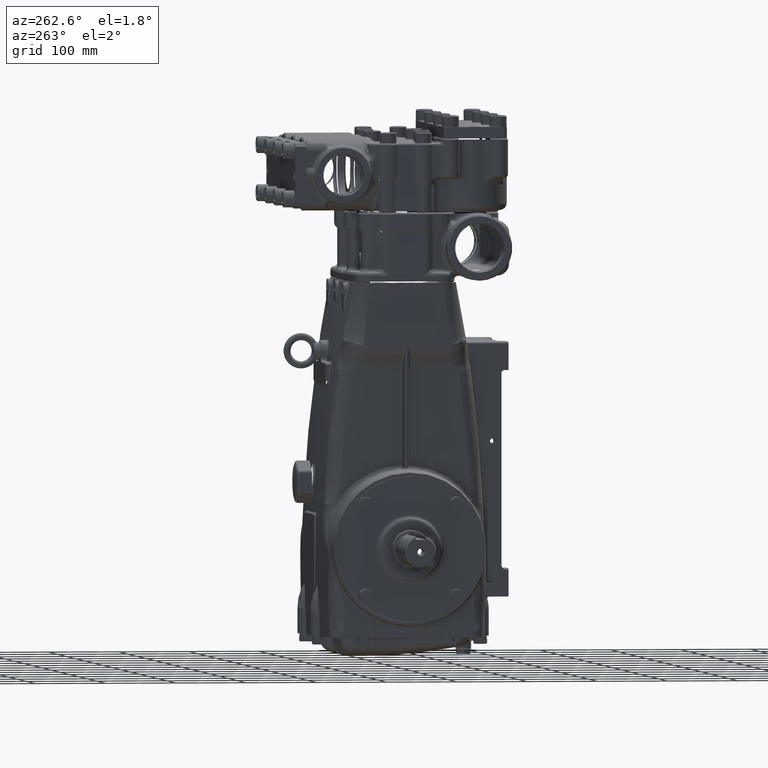
[diagram: clean part render]
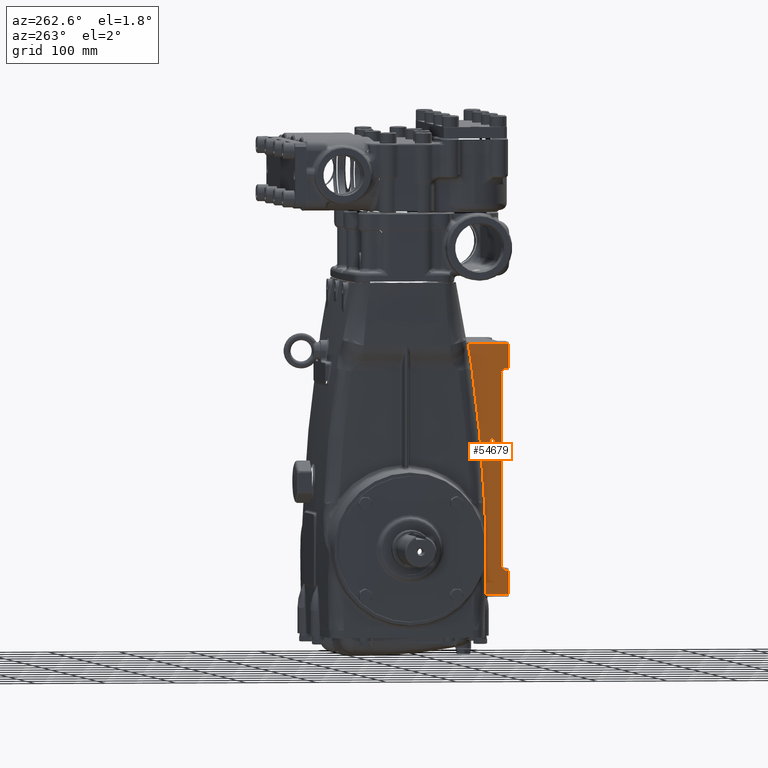
[diagram: same view with one face highlighted and labeled with its STEP entity id]
A machine part, auxiliary view. The second image highlights one B-rep face of the part: STEP entity #54679.
In plain terms, the highlighted planar face has unit normal (1, 0, -0).
Its self-contained STEP definition (entity closure, byte-faithful):
#1653 = CARTESIAN_POINT ( 'NONE',  ( -4.330708661417319583, -5.612481343199264394, 9.885936161313281900 ) ) ;
#2298 = CARTESIAN_POINT ( 'NONE',  ( -4.330708661417317806, -3.720373892604141641, 10.85050533803187101 ) ) ;
#3829 = EDGE_CURVE ( 'NONE', #21691, #114843, #54933, .T. ) ;
#4039 = VECTOR ( 'NONE', #122500, 39.37007874015748143 ) ;
#4455 = ORIENTED_EDGE ( 'NONE', *, *, #125132, .T. ) ;
#5116 = VERTEX_POINT ( 'NONE', #15306 ) ;
#5696 = CARTESIAN_POINT ( 'NONE',  ( -4.330708661417319583, -4.020560686727725930, 8.739019611534521559 ) ) ;
#6238 = CARTESIAN_POINT ( 'NONE',  ( -4.330708661417317806, -3.679653842082431403, 11.11588071487851259 ) ) ;
#6307 = CARTESIAN_POINT ( 'NONE',  ( -4.330708661417322247, -4.561810661030907710, 2.489665095192299393 ) ) ;
#7383 = EDGE_CURVE ( 'NONE', #43214, #112829, #108778, .T. ) ;
#8879 = CARTESIAN_POINT ( 'NONE',  ( -4.330708661417324024, -5.523857557543355057, -1.082472261973262961 ) ) ;
#10618 = CARTESIAN_POINT ( 'NONE',  ( -4.330708661417318694, -3.849796325247808237, 9.982332000776853675 ) ) ;
#11981 = B_SPLINE_CURVE_WITH_KNOTS ( 'NONE', 3,
 ( #13643, #98943, #32604, #90111, #50922, #42057, #117910, #31982, #68643, #1653, #22504, #61053 ),
 .UNSPECIFIED., .F., .F.,
 ( 4, 2, 2, 2, 2, 4 ),
 ( 2.281535328170445040E-15, 0.001161146787051145447, 0.001741720180575610224, 0.002322293574100075218, 0.004644587148197994175, 0.009289174296393882396 ),
 .UNSPECIFIED. ) ;
#13040 = CARTESIAN_POINT ( 'NONE',  ( -4.330708661417316030, -3.797914805191444643, 10.32958397861387922 ) ) ;
#13622 = CARTESIAN_POINT ( 'NONE',  ( -4.330708661417324024, -5.905511811023622215, -1.299212598425191434 ) ) ;
#13643 = CARTESIAN_POINT ( 'NONE',  ( -4.330708661417318694, -5.511811023621509875, 9.668653602870250552 ) ) ;
#13791 = EDGE_CURVE ( 'NONE', #92697, #43214, #73024, .T. ) ;
#13945 = CARTESIAN_POINT ( 'NONE',  ( -4.330708661417322247, -4.574199430740796934, 2.235728777375860066 ) ) ;
#14025 = B_SPLINE_CURVE_WITH_KNOTS ( 'NONE', 3,
 ( #100508, #81555, #13945, #120706, #91013, #120097 ),
 .UNSPECIFIED., .F., .F.,
 ( 4, 2, 4 ),
 ( 0.000000000000000000, 0.009686476643616477242, 0.01937295328723295448 ),
 .UNSPECIFIED. ) ;
#14393 = EDGE_CURVE ( 'NONE', #83195, #96945, #21818, .T. ) ;
#15202 = CARTESIAN_POINT ( 'NONE',  ( -4.330708661417318694, -3.849796325247808237, 9.982332000776853675 ) ) ;
#15306 = CARTESIAN_POINT ( 'NONE',  ( -4.330708661417324912, -5.905511811023622215, -2.637795275590546940 ) ) ;
#15887 = CARTESIAN_POINT ( 'NONE',  ( -4.330708661417324024, -5.511811023621509875, -1.007236280035602061 ) ) ;
#16501 = CARTESIAN_POINT ( 'NONE',  ( -4.330708661417323135, -5.519561899254895820, -1.067744340551026516 ) ) ;
#18795 = CIRCLE ( 'NONE', #121685, 0.1328740157480310657 ) ;
#20520 = CARTESIAN_POINT ( 'NONE',  ( -4.330708661417318694, -5.905511811023622215, 9.960629921259842590 ) ) ;
#20540 = DIRECTION ( 'NONE',  ( -0.000000000000000000, 1.000000000000000000, -0.000000000000000000 ) ) ;
#20835 = DIRECTION ( 'NONE',  ( 4.625929269271485914E-16, -0.000000000000000000, 1.000000000000000000 ) ) ;
#21691 = VERTEX_POINT ( 'NONE', #91900 ) ;
#21818 = B_SPLINE_CURVE_WITH_KNOTS ( 'NONE', 3,
 ( #109398, #29538, #124350, #123085, #85783, #38378 ),
 .UNSPECIFIED., .F., .F.,
 ( 4, 2, 4 ),
 ( 0.000000000000000000, 0.05545994499391303928, 0.1109198899878260786 ),
 .UNSPECIFIED. ) ;
#22504 = CARTESIAN_POINT ( 'NONE',  ( -4.330708661417317806, -5.660474196190496521, 9.923304198069603288 ) ) ;
#22532 = CARTESIAN_POINT ( 'NONE',  ( -4.330708661417317806, -3.707756986922133624, 10.93737147724965375 ) ) ;
#22858 = DIRECTION ( 'NONE',  ( 0.000000000000000000, -1.000000000000000000, 0.000000000000000000 ) ) ;
#23079 = CARTESIAN_POINT ( 'NONE',  ( -4.330708661417317806, -5.905511811023622215, 11.29921259842519810 ) ) ;
#23352 = LINE ( 'NONE', #82685, #4039 ) ;
#25987 = CARTESIAN_POINT ( 'NONE',  ( -4.330708661417324024, -5.708661417322118403, -1.299212598425195875 ) ) ;
#26023 = DIRECTION ( 'NONE',  ( 1.000000000000000000, 0.000000000000000000, -4.625929269271485914E-16 ) ) ;
#27212 = ORIENTED_EDGE ( 'NONE', *, *, #77664, .T. ) ;
#28048 = VERTEX_POINT ( 'NONE', #62585 ) ;
#28940 = B_SPLINE_CURVE_WITH_KNOTS ( 'NONE', 3,
 ( #25987, #124549, #112553, #122037, #64513, #103044, #74008, #45548, #113813, #37964, #8879, #16501, #76496, #55045, #115036, #15887 ),
 .UNSPECIFIED., .F., .F.,
 ( 4, 2, 2, 2, 2, 2, 2, 4 ),
 ( -1.414213562386258345E-05, 0.001141492621043463211, 0.002297127377710789231, 0.004608396891045378821, 0.006919666404379967543, 0.007497483782713633589, 0.008075301161047298767, 0.009230935917714627389 ),
 .UNSPECIFIED. ) ;
#29250 = VECTOR ( 'NONE', #22858, 39.37007874015748143 ) ;
#29538 = CARTESIAN_POINT ( 'NONE',  ( -4.330708661417322247, -4.625092016339777068, 1.000649448202308278 ) ) ;
#31813 = VERTEX_POINT ( 'NONE', #44662 ) ;
#31982 = CARTESIAN_POINT ( 'NONE',  ( -4.330708661417319583, -5.540231194186154617, 9.786952323660477404 ) ) ;
#32604 = CARTESIAN_POINT ( 'NONE',  ( -4.330708661417316918, -5.513360750186181214, 9.699301047257321784 ) ) ;
#33064 = ORIENTED_EDGE ( 'NONE', *, *, #72685, .T. ) ;
#35686 = CARTESIAN_POINT ( 'NONE',  ( -4.330708661417317806, -5.905511811023622215, 11.41732283464567033 ) ) ;
#37209 = CARTESIAN_POINT ( 'NONE',  ( -4.330708661417317806, -3.694105952064032472, 11.02408274776168184 ) ) ;
#37616 = LINE ( 'NONE', #99935, #29250 ) ;
#37964 = CARTESIAN_POINT ( 'NONE',  ( -4.330708661417324024, -5.526354792053539633, -1.089803178924994453 ) ) ;
#38378 = CARTESIAN_POINT ( 'NONE',  ( -4.330708661417324912, -4.641171733027025681, -2.637795275590551380 ) ) ;
#38526 = LINE ( 'NONE', #116246, #65607 ) ;
#38981 = CARTESIAN_POINT ( 'NONE',  ( -4.330708661417318694, -3.849796325247808237, 9.982332000776853675 ) ) ;
#39664 = CARTESIAN_POINT ( 'NONE',  ( -4.330708661417324024, -5.708661417322118403, -1.299212598425195875 ) ) ;
#39925 = DIRECTION ( 'NONE',  ( 1.000000000000000000, 0.000000000000000000, -4.625929269271485914E-16 ) ) ;
#42057 = CARTESIAN_POINT ( 'NONE',  ( -4.330708661417318694, -5.523857386598908015, 9.743889051750500130 ) ) ;
#42273 = EDGE_LOOP ( 'NONE', ( #74790, #49333, #61525, #68019, #33064, #122810, #62233, #27212, #113010, #98373, #78457, #62507, #86703, #61531 ) ) ;
#43214 = VERTEX_POINT ( 'NONE', #10618 ) ;
#43373 = EDGE_CURVE ( 'NONE', #57377, #51120, #45255, .T. ) ;
#44662 = CARTESIAN_POINT ( 'NONE',  ( -4.330708661417318694, -5.511811023621509875, 9.668653602870250552 ) ) ;
#45255 = LINE ( 'NONE', #45891, #123445 ) ;
#45548 = CARTESIAN_POINT ( 'NONE',  ( -4.330708661417323135, -5.555866031770023028, -1.151722018210426413 ) ) ;
#45891 = CARTESIAN_POINT ( 'NONE',  ( -4.330708661417324024, 19685.03937007874265, -1.299212598425195875 ) ) ;
#46054 = CARTESIAN_POINT ( 'NONE',  ( -4.330708661417318694, 19685.03937007874265, 9.960629921259842590 ) ) ;
#46906 = CARTESIAN_POINT ( 'NONE',  ( -4.330708661417317806, -3.650293332670990765, 11.29921259842519810 ) ) ;
#48177 = VERTEX_POINT ( 'NONE', #46906 ) ;
#49084 = DIRECTION ( 'NONE',  ( 0.000000000000000000, 0.000000000000000000, -1.000000000000000000 ) ) ;
#49333 = ORIENTED_EDGE ( 'NONE', *, *, #70644, .T. ) ;
#49598 = EDGE_CURVE ( 'NONE', #96945, #5116, #37616, .T. ) ;
#49706 = CARTESIAN_POINT ( 'NONE',  ( -4.330708661417316030, -3.745837844733637123, 10.67680752492550589 ) ) ;
#50351 = VECTOR ( 'NONE', #103254, 39.37007874015748143 ) ;
#50922 = CARTESIAN_POINT ( 'NONE',  ( -4.330708661417318694, -5.519561789034339583, 9.729161232448573671 ) ) ;
#51120 = VERTEX_POINT ( 'NONE', #39664 ) ;
#51579 = CARTESIAN_POINT ( 'NONE',  ( -4.330708661417317806, -3.824865578151133150, 10.15610846772178633 ) ) ;
#54679 = ADVANCED_FACE ( 'NONE', ( #115757, #78472 ), #107531, .F. ) ;
#54761 = DIRECTION ( 'NONE',  ( 0.000000000000000000, 1.000000000000000000, 0.000000000000000000 ) ) ;
#54933 = LINE ( 'NONE', #46054, #70905 ) ;
#55045 = CARTESIAN_POINT ( 'NONE',  ( -4.330708661417324024, -5.513360772546194610, -1.037883945434335820 ) ) ;
#57377 = VERTEX_POINT ( 'NONE', #13622 ) ;
#59682 = CARTESIAN_POINT ( 'NONE',  ( -4.330708661417322247, -4.561810661030907710, 2.489665095192299393 ) ) ;
#61053 = CARTESIAN_POINT ( 'NONE',  ( -4.330708661417318694, -5.708661417322118403, 9.960629921259842590 ) ) ;
#61075 = CARTESIAN_POINT ( 'NONE',  ( -4.330708661417315142, -3.758670633339183720, 10.58997371581670244 ) ) ;
#61384 = CARTESIAN_POINT ( 'NONE',  ( -4.330708661417322247, -4.413781653075156797, 4.995237787766293458 ) ) ;
#61525 = ORIENTED_EDGE ( 'NONE', *, *, #13791, .T. ) ;
#61531 = ORIENTED_EDGE ( 'NONE', *, *, #117567, .T. ) ;
#62004 = CARTESIAN_POINT ( 'NONE',  ( -4.330708661417319583, -4.235753434905722870, 6.869152594603407103 ) ) ;
#62233 = ORIENTED_EDGE ( 'NONE', *, *, #49598, .T. ) ;
#62507 = ORIENTED_EDGE ( 'NONE', *, *, #75652, .T. ) ;
#62585 = CARTESIAN_POINT ( 'NONE',  ( -4.330708661417320471, -5.000000000000000000, 6.038385826771652809 ) ) ;
#62974 = AXIS2_PLACEMENT_3D ( 'NONE', #65824, #26023, #65183 ) ;
#63590 = EDGE_CURVE ( 'NONE', #70527, #31813, #23352, .T. ) ;
#63881 = AXIS2_PLACEMENT_3D ( 'NONE', #106297, #39925, #117001 ) ;
#64513 = CARTESIAN_POINT ( 'NONE',  ( -4.330708661417324024, -5.649158604997146504, -1.251872600408570513 ) ) ;
#64929 = DIRECTION ( 'NONE',  ( 1.000000000000000000, 0.000000000000000000, -4.625929269271485914E-16 ) ) ;
#65009 = CARTESIAN_POINT ( 'NONE',  ( -4.330708661417317806, -3.650293332670990765, 11.29921259842519810 ) ) ;
#65183 = DIRECTION ( 'NONE',  ( 0.000000000000000000, 0.000000000000000000, -1.000000000000000000 ) ) ;
#65607 = VECTOR ( 'NONE', #20835, 39.37007874015748143 ) ;
#65824 = CARTESIAN_POINT ( 'NONE',  ( -4.330708661417320471, -5.000000000000000000, 5.905511811023622215 ) ) ;
#68019 = ORIENTED_EDGE ( 'NONE', *, *, #7383, .T. ) ;
#68643 = CARTESIAN_POINT ( 'NONE',  ( -4.330708661417318694, -5.555865420700115465, 9.813138377378511024 ) ) ;
#69930 = CARTESIAN_POINT ( 'NONE',  ( -4.330708661417317806, -3.694105952064032472, 11.02408274776168184 ) ) ;
#70527 = VERTEX_POINT ( 'NONE', #108402 ) ;
#70644 = EDGE_CURVE ( 'NONE', #48177, #92697, #109402, .T. ) ;
#70841 = CARTESIAN_POINT ( 'NONE',  ( -4.330708661417319583, -3.938904280000039559, 9.361209502195631416 ) ) ;
#70905 = VECTOR ( 'NONE', #84618, 39.37007874015748143 ) ;
#71520 = CARTESIAN_POINT ( 'NONE',  ( -4.330708661417322247, -4.597700456621135245, 1.727972093343288496 ) ) ;
#72685 = EDGE_CURVE ( 'NONE', #112829, #83195, #14025, .T. ) ;
#73024 = B_SPLINE_CURVE_WITH_KNOTS ( 'NONE', 3,
 ( #69930, #22532, #2298, #49706, #61075, #13040, #51579, #38981 ),
 .UNSPECIFIED., .F., .F.,
 ( 4, 2, 2, 4 ),
 ( 0.000000000000000000, 0.006688590237758891902, 0.01337718047551778380, 0.02675436095103556761 ),
 .UNSPECIFIED. ) ;
#73657 = LINE ( 'NONE', #112205, #91929 ) ;
#74008 = CARTESIAN_POINT ( 'NONE',  ( -4.330708661417325800, -5.593610404961347982, -1.200254064566543377 ) ) ;
#74790 = ORIENTED_EDGE ( 'NONE', *, *, #78104, .T. ) ;
#75652 = EDGE_CURVE ( 'NONE', #31813, #21691, #11981, .T. ) ;
#76496 = CARTESIAN_POINT ( 'NONE',  ( -4.330708661417324912, -5.517751417632301703, -1.060323281988302835 ) ) ;
#77664 = EDGE_CURVE ( 'NONE', #5116, #57377, #38526, .T. ) ;
#78104 = EDGE_CURVE ( 'NONE', #81738, #48177, #73657, .T. ) ;
#78457 = ORIENTED_EDGE ( 'NONE', *, *, #63590, .T. ) ;
#78472 = FACE_OUTER_BOUND ( 'NONE', #42273, .T. ) ;
#78621 = EDGE_LOOP ( 'NONE', ( #4455, #92756 ) ) ;
#79931 = VERTEX_POINT ( 'NONE', #119364 ) ;
#81555 = CARTESIAN_POINT ( 'NONE',  ( -4.330708661417322247, -4.567744563071908459, 2.362684232270944040 ) ) ;
#81738 = VERTEX_POINT ( 'NONE', #23079 ) ;
#82685 = CARTESIAN_POINT ( 'NONE',  ( -4.330708661417317806, -5.511811023621509875, 11.41732283464567033 ) ) ;
#83195 = VERTEX_POINT ( 'NONE', #71520 ) ;
#84231 = EDGE_CURVE ( 'NONE', #51120, #70527, #28940, .T. ) ;
#84276 = CARTESIAN_POINT ( 'NONE',  ( -4.330708661417324912, -4.641171733027025681, -2.637795275590551380 ) ) ;
#84618 = DIRECTION ( 'NONE',  ( 0.000000000000000000, -1.000000000000000000, 0.000000000000000000 ) ) ;
#85783 = CARTESIAN_POINT ( 'NONE',  ( -4.330708661417324912, -4.654075012934553612, -1.910071403598017747 ) ) ;
#86703 = ORIENTED_EDGE ( 'NONE', *, *, #3829, .T. ) ;
#90111 = CARTESIAN_POINT ( 'NONE',  ( -4.330708661417317806, -5.517751333018248161, 9.721740225750888698 ) ) ;
#91013 = CARTESIAN_POINT ( 'NONE',  ( -4.330708661417322247, -4.592923636427223677, 1.854832446781617517 ) ) ;
#91033 = CARTESIAN_POINT ( 'NONE',  ( -4.330708661417320471, -5.000000000000000000, 5.905511811023622215 ) ) ;
#91900 = CARTESIAN_POINT ( 'NONE',  ( -4.330708661417318694, -5.708661417322118403, 9.960629921259842590 ) ) ;
#91929 = VECTOR ( 'NONE', #20540, 39.37007874015748143 ) ;
#92697 = VERTEX_POINT ( 'NONE', #101611 ) ;
#92756 = ORIENTED_EDGE ( 'NONE', *, *, #122817, .T. ) ;
#95161 = CIRCLE ( 'NONE', #62974, 0.1328740157480310657 ) ;
#96945 = VERTEX_POINT ( 'NONE', #84276 ) ;
#98373 = ORIENTED_EDGE ( 'NONE', *, *, #84231, .T. ) ;
#98943 = CARTESIAN_POINT ( 'NONE',  ( -4.330708661417320471, -5.511811023622048111, 9.684108474770964037 ) ) ;
#99917 = CARTESIAN_POINT ( 'NONE',  ( -4.330708661417319583, -4.168985392030166715, 7.492982133599030981 ) ) ;
#99935 = CARTESIAN_POINT ( 'NONE',  ( -4.330708661417324912, 19685.03937007874265, -2.637795275590551380 ) ) ;
#100508 = CARTESIAN_POINT ( 'NONE',  ( -4.330708661417322247, -4.561810661030907710, 2.489665095192299393 ) ) ;
#100525 = CARTESIAN_POINT ( 'NONE',  ( -4.330708661417320471, -4.502726479363019507, 3.743283194850691942 ) ) ;
#101611 = CARTESIAN_POINT ( 'NONE',  ( -4.330708661417317806, -3.694105952064032472, 11.02408274776168184 ) ) ;
#103044 = CARTESIAN_POINT ( 'NONE',  ( -4.330708661417324912, -5.615046971796994413, -1.221747685589043453 ) ) ;
#103254 = DIRECTION ( 'NONE',  ( 4.625929269271485914E-16, -0.000000000000000000, 1.000000000000000000 ) ) ;
#103550 = CARTESIAN_POINT ( 'NONE',  ( -4.330708661417317806, -3.665054532830104073, 11.20755954673438559 ) ) ;
#106297 = CARTESIAN_POINT ( 'NONE',  ( -4.330708661417317806, 19685.03937007874265, 11.41732283464567033 ) ) ;
#107531 = PLANE ( 'NONE',  #63881 ) ;
#108402 = CARTESIAN_POINT ( 'NONE',  ( -4.330708661417324024, -5.511811023621509875, -1.007236280035602061 ) ) ;
#108778 = B_SPLINE_CURVE_WITH_KNOTS ( 'NONE', 3,
 ( #15202, #70841, #5696, #99917, #62004, #61384, #100525, #6307 ),
 .UNSPECIFIED., .F., .F.,
 ( 4, 2, 2, 4 ),
 ( 0.000000000000000000, 0.04781237632467381926, 0.09562475264934763852, 0.1912495052986952770 ),
 .UNSPECIFIED. ) ;
#109398 = CARTESIAN_POINT ( 'NONE',  ( -4.330708661417322247, -4.597700456621135245, 1.727972093343288496 ) ) ;
#109402 = B_SPLINE_CURVE_WITH_KNOTS ( 'NONE', 3,
 ( #65009, #103550, #6238, #37209 ),
 .UNSPECIFIED., .F., .F.,
 ( 4, 4 ),
 ( 0.000000000000000000, 0.007073949357450777693 ),
 .UNSPECIFIED. ) ;
#112205 = CARTESIAN_POINT ( 'NONE',  ( -4.330708661417317806, 19685.03937007874265, 11.29921259842519810 ) ) ;
#112553 = CARTESIAN_POINT ( 'NONE',  ( -4.330708661417322247, -5.684592308236755542, -1.280568199181267408 ) ) ;
#112829 = VERTEX_POINT ( 'NONE', #59682 ) ;
#113010 = ORIENTED_EDGE ( 'NONE', *, *, #43373, .T. ) ;
#113813 = CARTESIAN_POINT ( 'NONE',  ( -4.330708661417323135, -5.540231583407777549, -1.125535796228187779 ) ) ;
#114843 = VERTEX_POINT ( 'NONE', #20520 ) ;
#115036 = CARTESIAN_POINT ( 'NONE',  ( -4.330708661417325800, -5.511811023622048999, -1.022691264334465666 ) ) ;
#115757 = FACE_BOUND ( 'NONE', #78621, .T. ) ;
#116246 = CARTESIAN_POINT ( 'NONE',  ( -4.330708661417317806, -5.905511811023622215, 11.41732283464567033 ) ) ;
#117001 = DIRECTION ( 'NONE',  ( -4.625929269271485914E-16, 0.000000000000000000, -1.000000000000000000 ) ) ;
#117567 = EDGE_CURVE ( 'NONE', #114843, #81738, #122248, .T. ) ;
#117910 = CARTESIAN_POINT ( 'NONE',  ( -4.330708661417319583, -5.526354586598208662, 9.751219921001139213 ) ) ;
#119364 = CARTESIAN_POINT ( 'NONE',  ( -4.330708661417320471, -5.000000000000000000, 5.772637795275590733 ) ) ;
#120097 = CARTESIAN_POINT ( 'NONE',  ( -4.330708661417322247, -4.597700456621135245, 1.727972093343288496 ) ) ;
#120706 = CARTESIAN_POINT ( 'NONE',  ( -4.330708661417322247, -4.586823144275528286, 1.981804329023327815 ) ) ;
#121685 = AXIS2_PLACEMENT_3D ( 'NONE', #91033, #64929, #49084 ) ;
#122037 = CARTESIAN_POINT ( 'NONE',  ( -4.330708661417323135, -5.660857683331290247, -1.261559054153000847 ) ) ;
#122248 = LINE ( 'NONE', #35686, #50351 ) ;
#122500 = DIRECTION ( 'NONE',  ( 4.625929269271485914E-16, -0.000000000000000000, 1.000000000000000000 ) ) ;
#122810 = ORIENTED_EDGE ( 'NONE', *, *, #14393, .T. ) ;
#122817 = EDGE_CURVE ( 'NONE', #28048, #79931, #95161, .T. ) ;
#123085 = CARTESIAN_POINT ( 'NONE',  ( -4.330708661417324024, -4.656901445509914694, -1.182378075778278692 ) ) ;
#123445 = VECTOR ( 'NONE', #54761, 39.37007874015748143 ) ;
#124350 = CARTESIAN_POINT ( 'NONE',  ( -4.330708661417323135, -4.642412221602565836, 0.2729475266938742872 ) ) ;
#124549 = CARTESIAN_POINT ( 'NONE',  ( -4.330708661417323135, -5.696671798915732055, -1.289925464463378413 ) ) ;
#125132 = EDGE_CURVE ( 'NONE', #79931, #28048, #18795, .T. ) ;